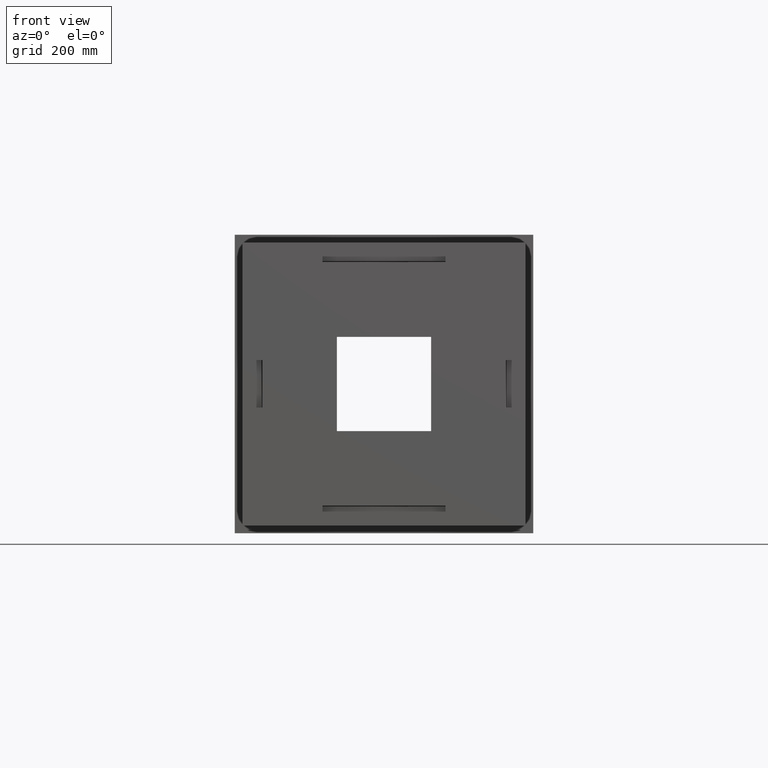
[diagram: clean part render]
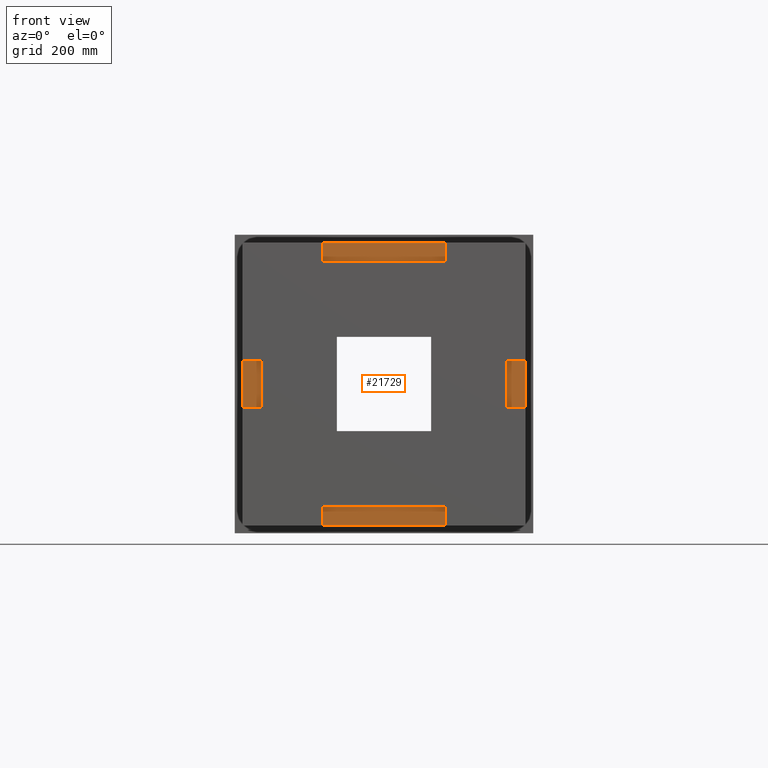
[diagram: same view with one face highlighted and labeled with its STEP entity id]
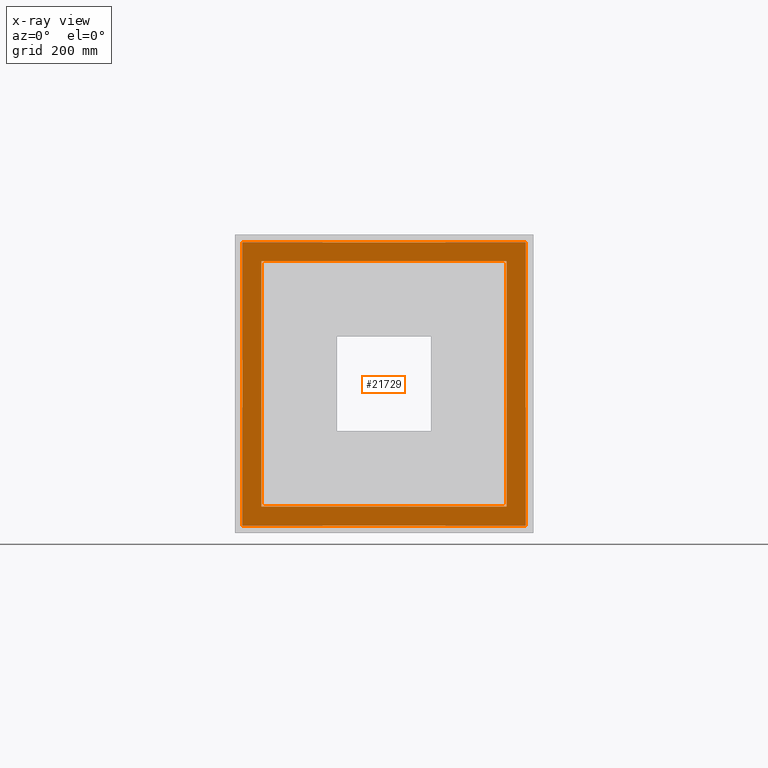
[diagram: x-ray of the same camera — body ghosted, the highlighted face saturated]
A machine part, front view. The second image highlights one B-rep face of the part: STEP entity #21729.
The next image is the same camera in x-ray: the body ghosted, the highlighted face saturated — about 0% of this face is hidden behind the body in this view.
In plain terms, the highlighted planar face has unit normal (-0, -1, -0).
Its self-contained STEP definition (entity closure, byte-faithful):
#408 = VERTEX_POINT ( 'NONE', #5116 ) ;
#1771 = ORIENTED_EDGE ( 'NONE', *, *, #6498, .F. ) ;
#2180 = FACE_BOUND ( 'NONE', #28886, .T. ) ;
#2619 = VECTOR ( 'NONE', #29408, 1000.000000000000000 ) ;
#2889 = LINE ( 'NONE', #10812, #29914 ) ;
#2923 = VECTOR ( 'NONE', #32791, 1000.000000000000000 ) ;
#3083 = CARTESIAN_POINT ( 'NONE',  ( -260.0000000000000568, 54.99999999999985789, -260.0000000000000568 ) ) ;
#3192 = DIRECTION ( 'NONE',  ( -1.000000000000000000, 4.823111849521172529E-17, -1.734723475976807094E-17 ) ) ;
#3350 = ORIENTED_EDGE ( 'NONE', *, *, #8764, .F. ) ;
#3373 = ORIENTED_EDGE ( 'NONE', *, *, #10621, .F. ) ;
#3537 = VERTEX_POINT ( 'NONE', #25801 ) ;
#3642 = AXIS2_PLACEMENT_3D ( 'NONE', #24005, #10952, #3192 ) ;
#5116 = CARTESIAN_POINT ( 'NONE',  ( 259.9999999999998863, 54.99999999999982947, -260.0000000000000568 ) ) ;
#5749 = VERTEX_POINT ( 'NONE', #27692 ) ;
#6443 = DIRECTION ( 'NONE',  ( -1.000000000000000000, 4.823111849521172529E-17, -1.734723475976807094E-17 ) ) ;
#6498 = EDGE_CURVE ( 'NONE', #408, #13343, #9062, .T. ) ;
#7151 = VERTEX_POINT ( 'NONE', #22601 ) ;
#7585 = EDGE_LOOP ( 'NONE', ( #24292, #3373, #9643, #13549 ) ) ;
#7780 = DIRECTION ( 'NONE',  ( 1.734723475976807094E-17, 4.440892098500628134E-16, -1.000000000000000000 ) ) ;
#8513 = EDGE_CURVE ( 'NONE', #25768, #7151, #29765, .T. ) ;
#8645 = ORIENTED_EDGE ( 'NONE', *, *, #20772, .F. ) ;
#8764 = EDGE_CURVE ( 'NONE', #21120, #408, #14549, .T. ) ;
#9062 = LINE ( 'NONE', #16935, #2923 ) ;
#9073 = CARTESIAN_POINT ( 'NONE',  ( -300.0000000000000568, 54.99999999999960210, 299.9999999999999432 ) ) ;
#9310 = VERTEX_POINT ( 'NONE', #32173 ) ;
#9567 = LINE ( 'NONE', #11088, #2619 ) ;
#9643 = ORIENTED_EDGE ( 'NONE', *, *, #11439, .F. ) ;
#10621 = EDGE_CURVE ( 'NONE', #3537, #25768, #33366, .T. ) ;
#10812 = CARTESIAN_POINT ( 'NONE',  ( 259.9999999999998863, 54.99999999999960210, 259.9999999999999432 ) ) ;
#10952 = DIRECTION ( 'NONE',  ( -4.823111849521171913E-17, -1.000000000000000000, -4.440892098500628134E-16 ) ) ;
#11088 = CARTESIAN_POINT ( 'NONE',  ( 299.9999999999999432, 54.99999999999957367, 299.9999999999999432 ) ) ;
#11439 = EDGE_CURVE ( 'NONE', #9310, #3537, #9567, .T. ) ;
#11996 = VECTOR ( 'NONE', #6443, 1000.000000000000000 ) ;
#13343 = VERTEX_POINT ( 'NONE', #15156 ) ;
#13549 = ORIENTED_EDGE ( 'NONE', *, *, #27453, .F. ) ;
#14549 = LINE ( 'NONE', #3083, #31389 ) ;
#15156 = CARTESIAN_POINT ( 'NONE',  ( 259.9999999999998863, 54.99999999999960210, 259.9999999999999432 ) ) ;
#15285 = CARTESIAN_POINT ( 'NONE',  ( -300.0000000000000568, 54.99999999999987921, -300.0000000000001137 ) ) ;
#16935 = CARTESIAN_POINT ( 'NONE',  ( 259.9999999999998863, 54.99999999999982947, -260.0000000000000568 ) ) ;
#17363 = EDGE_CURVE ( 'NONE', #13343, #5749, #2889, .T. ) ;
#17444 = VECTOR ( 'NONE', #20498, 1000.000000000000000 ) ;
#18860 = PLANE ( 'NONE',  #3642 ) ;
#19721 = DIRECTION ( 'NONE',  ( 1.000000000000000000, -4.823111849521172529E-17, 1.734723475976807094E-17 ) ) ;
#20160 = CARTESIAN_POINT ( 'NONE',  ( -300.0000000000000568, 54.99999999999960210, 299.9999999999999432 ) ) ;
#20498 = DIRECTION ( 'NONE',  ( -1.734723475976807094E-17, -4.440892098500628134E-16, 1.000000000000000000 ) ) ;
#20772 = EDGE_CURVE ( 'NONE', #5749, #21120, #28386, .T. ) ;
#21120 = VERTEX_POINT ( 'NONE', #25227 ) ;
#21424 = VECTOR ( 'NONE', #7780, 1000.000000000000000 ) ;
#21715 = DIRECTION ( 'NONE',  ( 1.000000000000000000, -4.823111849521172529E-17, 1.734723475976807094E-17 ) ) ;
#21729 = ADVANCED_FACE ( 'NONE', ( #2180, #33742 ), #18860, .T. ) ;
#22339 = VECTOR ( 'NONE', #19721, 1000.000000000000000 ) ;
#22601 = CARTESIAN_POINT ( 'NONE',  ( -300.0000000000000568, 54.99999999999960210, 299.9999999999999432 ) ) ;
#23858 = CARTESIAN_POINT ( 'NONE',  ( -260.0000000000000568, 54.99999999999963052, 259.9999999999998863 ) ) ;
#24005 = CARTESIAN_POINT ( 'NONE',  ( -300.0000000000000568, 54.99999999999987921, -300.0000000000001137 ) ) ;
#24292 = ORIENTED_EDGE ( 'NONE', *, *, #8513, .F. ) ;
#25227 = CARTESIAN_POINT ( 'NONE',  ( -260.0000000000000568, 54.99999999999985789, -260.0000000000000568 ) ) ;
#25575 = ORIENTED_EDGE ( 'NONE', *, *, #17363, .F. ) ;
#25768 = VERTEX_POINT ( 'NONE', #15285 ) ;
#25801 = CARTESIAN_POINT ( 'NONE',  ( 299.9999999999999432, 54.99999999999985789, -300.0000000000001137 ) ) ;
#27356 = CARTESIAN_POINT ( 'NONE',  ( -300.0000000000000568, 54.99999999999987921, -300.0000000000001137 ) ) ;
#27453 = EDGE_CURVE ( 'NONE', #7151, #9310, #29703, .T. ) ;
#27692 = CARTESIAN_POINT ( 'NONE',  ( -260.0000000000000568, 54.99999999999963052, 259.9999999999998863 ) ) ;
#28386 = LINE ( 'NONE', #23858, #21424 ) ;
#28886 = EDGE_LOOP ( 'NONE', ( #25575, #1771, #3350, #8645 ) ) ;
#29408 = DIRECTION ( 'NONE',  ( 1.734723475976807094E-17, 4.440892098500628134E-16, -1.000000000000000000 ) ) ;
#29703 = LINE ( 'NONE', #9073, #22339 ) ;
#29765 = LINE ( 'NONE', #20160, #17444 ) ;
#29914 = VECTOR ( 'NONE', #31658, 1000.000000000000000 ) ;
#31389 = VECTOR ( 'NONE', #21715, 1000.000000000000000 ) ;
#31658 = DIRECTION ( 'NONE',  ( -1.000000000000000000, 4.823111849521172529E-17, -1.734723475976807094E-17 ) ) ;
#32173 = CARTESIAN_POINT ( 'NONE',  ( 299.9999999999999432, 54.99999999999957367, 299.9999999999999432 ) ) ;
#32791 = DIRECTION ( 'NONE',  ( -1.734723475976807094E-17, -4.440892098500628134E-16, 1.000000000000000000 ) ) ;
#33366 = LINE ( 'NONE', #27356, #11996 ) ;
#33742 = FACE_OUTER_BOUND ( 'NONE', #7585, .T. ) ;